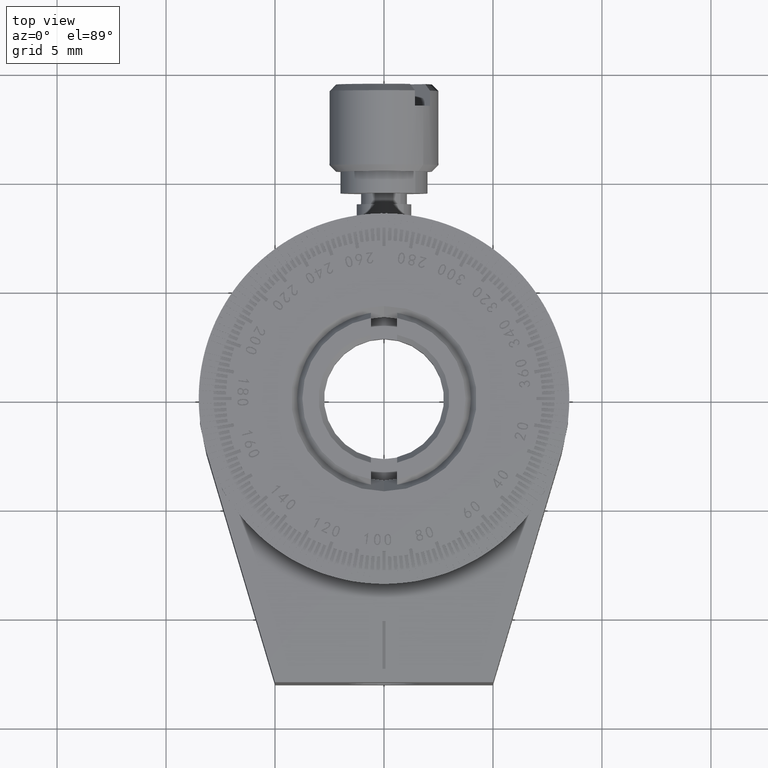
[diagram: clean part render]
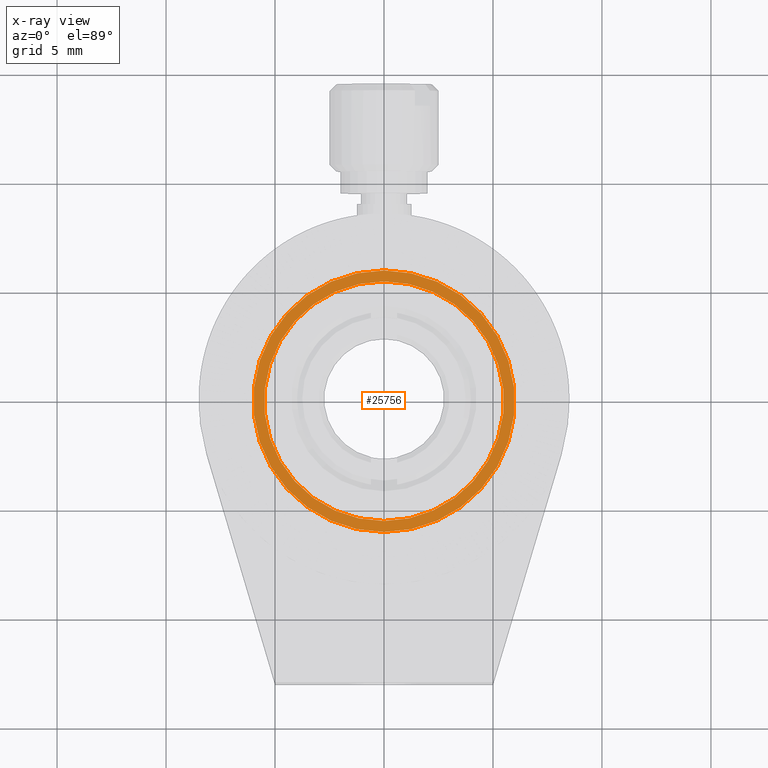
[diagram: x-ray — body ghosted, one internal face saturated and labeled with its STEP entity id]
A machine part, top view, then the same camera in x-ray: the body is ghosted and one INTERNAL B-rep face — a face not visible from any outside direction — is saturated and labeled: STEP entity #25756.
In plain terms, the highlighted planar face has unit normal (0, -0, -1).
Its self-contained STEP definition (entity closure, byte-faithful):
#226 = FACE_BOUND ( 'NONE', #61032, .T. ) ;
#1131 = EDGE_CURVE ( 'NONE', #55925, #10481, #17030, .T. ) ;
#1291 = ORIENTED_EDGE ( 'NONE', *, *, #1131, .F. ) ;
#7029 = AXIS2_PLACEMENT_3D ( 'NONE', #16425, #60068, #11914 ) ;
#7548 = CARTESIAN_POINT ( 'NONE',  ( 0.000000000000000000, -6.000000000000000000, 0.000000000000000000 ) ) ;
#9085 = CARTESIAN_POINT ( 'NONE',  ( 0.000000000000000000, -5.999999999999999112, 5.500000000000000000 ) ) ;
#9093 = CARTESIAN_POINT ( 'NONE',  ( 0.000000000000000000, -6.000000000000000000, 0.000000000000000000 ) ) ;
#10481 = VERTEX_POINT ( 'NONE', #9085 ) ;
#11000 = CARTESIAN_POINT ( 'NONE',  ( 6.735557395310442023E-16, -5.999999999999999112, -5.500000000000000000 ) ) ;
#11914 = DIRECTION ( 'NONE',  ( 0.000000000000000000, 0.000000000000000000, 1.000000000000000000 ) ) ;
#14994 = FACE_OUTER_BOUND ( 'NONE', #42088, .T. ) ;
#16425 = CARTESIAN_POINT ( 'NONE',  ( 0.000000000000000000, -5.999999999999999112, 0.000000000000000000 ) ) ;
#17030 = CIRCLE ( 'NONE', #31348, 5.500000000000000000 ) ;
#17677 = ORIENTED_EDGE ( 'NONE', *, *, #27616, .F. ) ;
#22335 = DIRECTION ( 'NONE',  ( 0.000000000000000000, 0.000000000000000000, -1.000000000000000000 ) ) ;
#24946 = CARTESIAN_POINT ( 'NONE',  ( -6.500000000000002665, -6.000000000000000000, 0.000000000000000000 ) ) ;
#25756 = ADVANCED_FACE ( 'NONE', ( #226, #14994 ), #49317, .F. ) ;
#27465 = DIRECTION ( 'NONE',  ( 0.000000000000000000, -1.000000000000000000, 0.000000000000000000 ) ) ;
#27616 = EDGE_CURVE ( 'NONE', #28690, #57157, #63433, .T. ) ;
#27747 = EDGE_CURVE ( 'NONE', #10481, #55925, #54206, .T. ) ;
#28690 = VERTEX_POINT ( 'NONE', #58895 ) ;
#30367 = DIRECTION ( 'NONE',  ( 0.000000000000000000, -0.000000000000000000, -1.000000000000000000 ) ) ;
#31348 = AXIS2_PLACEMENT_3D ( 'NONE', #37341, #62064, #56931 ) ;
#33701 = AXIS2_PLACEMENT_3D ( 'NONE', #9093, #59132, #58814 ) ;
#37341 = CARTESIAN_POINT ( 'NONE',  ( 0.000000000000000000, -5.999999999999999112, 0.000000000000000000 ) ) ;
#37731 = AXIS2_PLACEMENT_3D ( 'NONE', #24946, #43882, #30367 ) ;
#42088 = EDGE_LOOP ( 'NONE', ( #61000, #17677 ) ) ;
#43565 = CIRCLE ( 'NONE', #48685, 6.000000000000000888 ) ;
#43882 = DIRECTION ( 'NONE',  ( 0.000000000000000000, -1.000000000000000000, 0.000000000000000000 ) ) ;
#44239 = ORIENTED_EDGE ( 'NONE', *, *, #27747, .F. ) ;
#48685 = AXIS2_PLACEMENT_3D ( 'NONE', #7548, #27465, #22335 ) ;
#49317 = PLANE ( 'NONE',  #37731 ) ;
#54206 = CIRCLE ( 'NONE', #7029, 5.500000000000000000 ) ;
#55925 = VERTEX_POINT ( 'NONE', #11000 ) ;
#56931 = DIRECTION ( 'NONE',  ( 0.000000000000000000, 0.000000000000000000, 1.000000000000000000 ) ) ;
#57157 = VERTEX_POINT ( 'NONE', #62652 ) ;
#58384 = EDGE_CURVE ( 'NONE', #57157, #28690, #43565, .T. ) ;
#58814 = DIRECTION ( 'NONE',  ( 0.000000000000000000, 0.000000000000000000, -1.000000000000000000 ) ) ;
#58895 = CARTESIAN_POINT ( 'NONE',  ( 7.347880794884120722E-16, -6.000000000000000000, -6.000000000000000888 ) ) ;
#59132 = DIRECTION ( 'NONE',  ( 0.000000000000000000, -1.000000000000000000, 0.000000000000000000 ) ) ;
#60068 = DIRECTION ( 'NONE',  ( -0.000000000000000000, 1.000000000000000000, -0.000000000000000000 ) ) ;
#61000 = ORIENTED_EDGE ( 'NONE', *, *, #58384, .F. ) ;
#61032 = EDGE_LOOP ( 'NONE', ( #44239, #1291 ) ) ;
#62064 = DIRECTION ( 'NONE',  ( -0.000000000000000000, 1.000000000000000000, -0.000000000000000000 ) ) ;
#62652 = CARTESIAN_POINT ( 'NONE',  ( 0.000000000000000000, -6.000000000000000000, 6.000000000000000888 ) ) ;
#63433 = CIRCLE ( 'NONE', #33701, 6.000000000000000888 ) ;